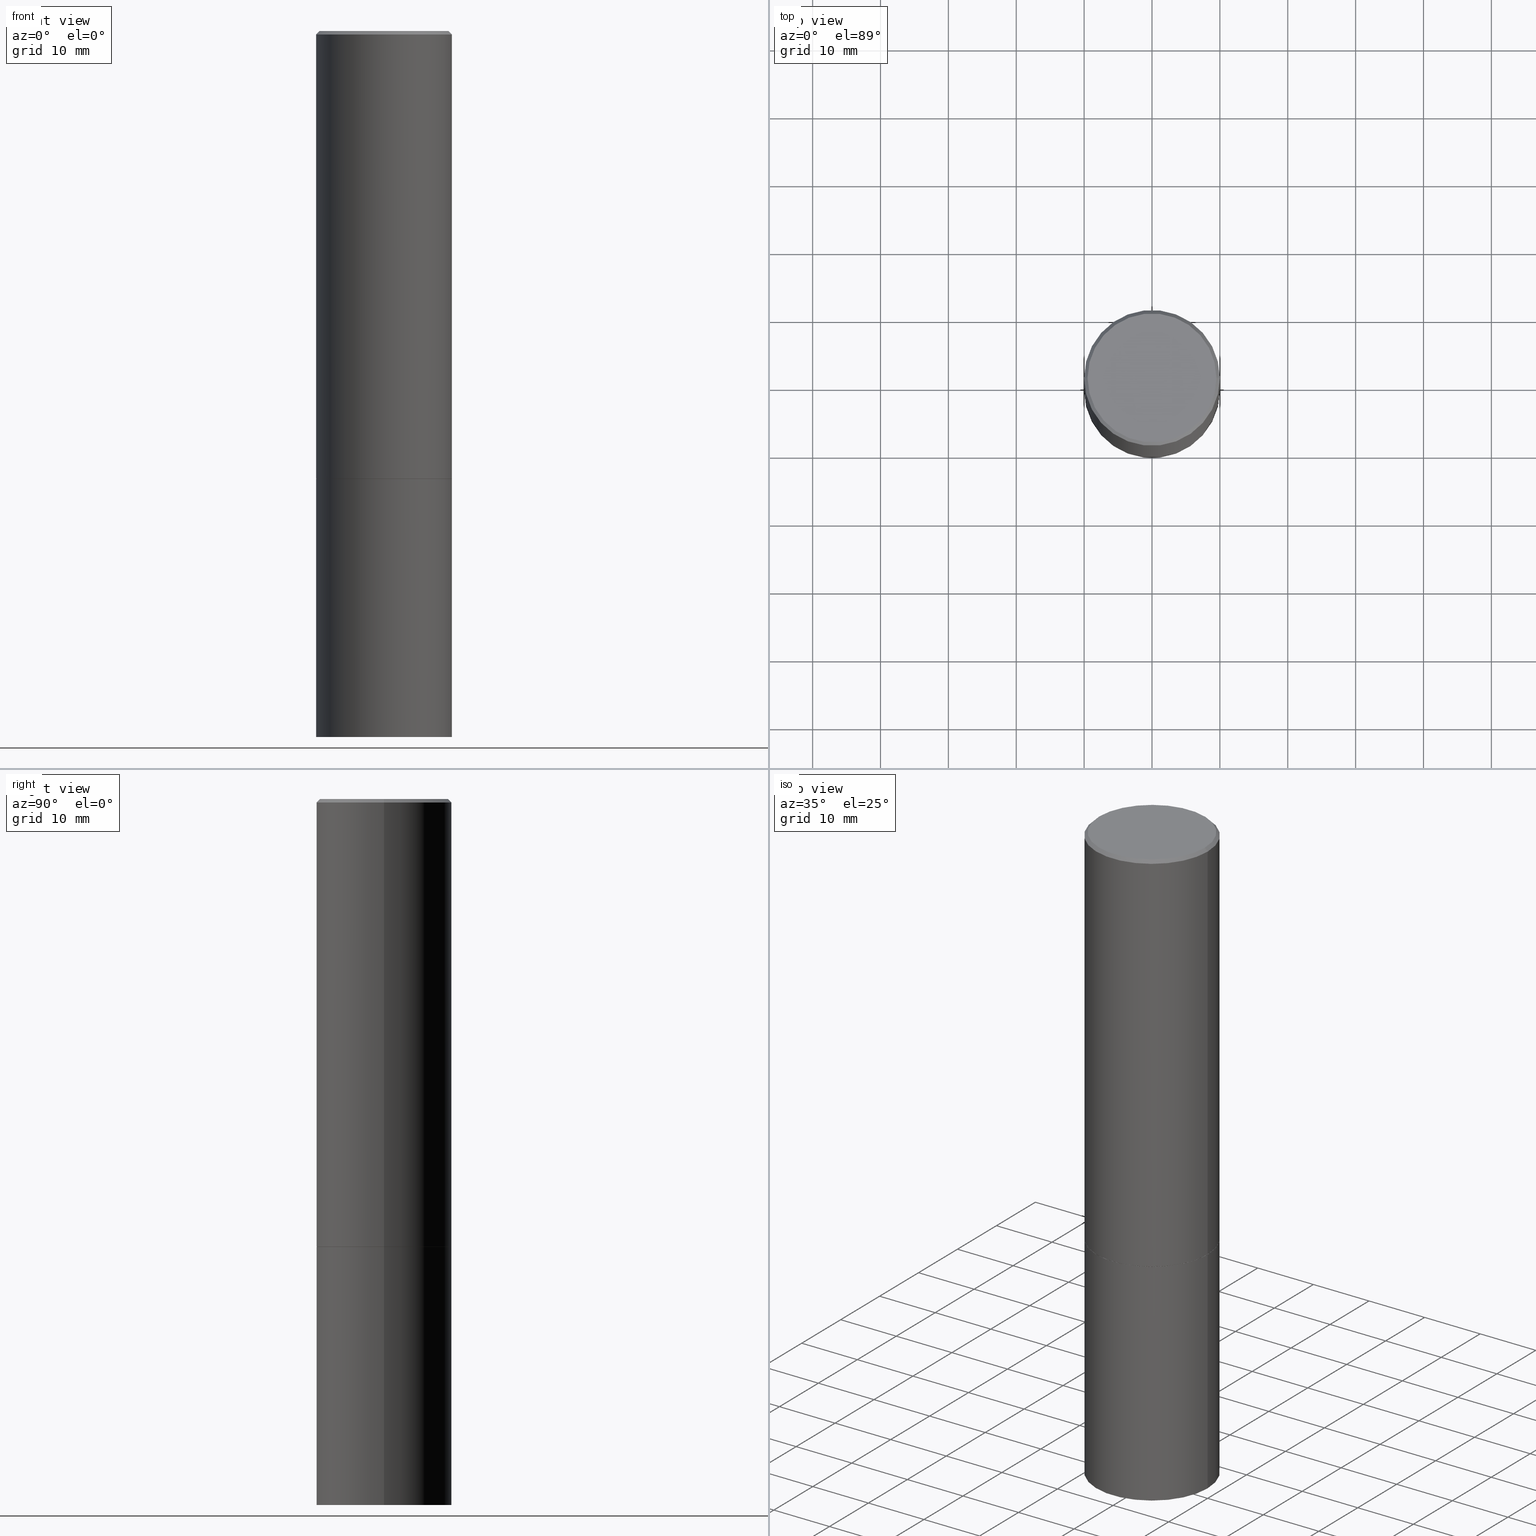
[diagram: canonical four-view strip — front | top / right | iso, engineering-drawing reading convention]
A machine part, canonical four-view strip (front | top / right | iso — engineering-drawing reading convention). The complete STEP part file that produces these views, byte-faithful:
ISO-10303-21;
HEADER;
FILE_DESCRIPTION (( 'STEP AP203' ),
    '1' );
FILE_NAME ('45105.STEP',
    '2024-02-28T09:01:40',
    ( '' ),
    ( '' ),
    'SwSTEP 2.0',
    'SolidWorks 2023',
    '' );
FILE_SCHEMA (( 'CONFIG_CONTROL_DESIGN' ));
ENDSEC;

DATA;
#1 = MECHANICAL_CONTEXT ( 'NONE', #319, 'mechanical' ) ;
#2 = APPROVAL_DATE_TIME ( #262, #215 ) ;
#3 = EDGE_LOOP ( 'NONE', ( #53, #331 ) ) ;
#4 = UNCERTAINTY_MEASURE_WITH_UNIT (LENGTH_MEASURE( 1.000000000000000082E-05 ), #365, 'distance_accuracy_value', 'NONE');
#5 = DATE_AND_TIME ( #208, #170 ) ;
#6 = ADVANCED_FACE ( 'NONE', ( #241 ), #153, .T. ) ;
#7 = AXIS2_PLACEMENT_3D ( 'NONE', #216, #193, #129 ) ;
#8 = CARTESIAN_POINT ( 'NONE',  ( 0.3937000000000000499, -2.749192406205083217E-15, 1.919750796630860172E-29 ) ) ;
#9 = CARTESIAN_POINT ( 'NONE',  ( 6.351860677185276395E-29, -9.068773629511191193E-15, -2.597400000000001263 ) ) ;
#10 = CYLINDRICAL_SURFACE ( 'NONE', #169, 0.3936999999999998279 ) ;
#11 = DIRECTION ( 'NONE',  ( -1.000000000000000000, 6.982962677686265922E-15, -4.876176775795935793E-29 ) ) ;
#12 = SECURITY_CLASSIFICATION ( '', '', #362 ) ;
#13 = EDGE_CURVE ( 'NONE', #76, #72, #348, .T. ) ;
#14 = CARTESIAN_POINT ( 'NONE',  ( -0.3937000000000000499, -8.886660975684131482E-15, -2.598400000000000265 ) ) ;
#15 = CARTESIAN_POINT ( 'NONE',  ( -2.087702828670439639E-46, 2.980686340760894400E-32, 8.537024980200822558E-18 ) ) ;
#16 = ORIENTED_EDGE ( 'NONE', *, *, #308, .F. ) ;
#17 = DIRECTION ( 'NONE',  ( -2.445468806185136597E-29, 3.491481338843145583E-15, 1.000000000000000000 ) ) ;
#18 = AXIS2_PLACEMENT_3D ( 'NONE', #15, #249, #134 ) ;
#19 = CARTESIAN_POINT ( 'NONE',  ( 4.890937612370295054E-31, -6.982962677686322424E-17, -0.02000000000000009062 ) ) ;
#20 = ORIENTED_EDGE ( 'NONE', *, *, #112, .F. ) ;
#21 = FACE_OUTER_BOUND ( 'NONE', #133, .T. ) ;
#22 = PERSON_AND_ORGANIZATION ( #295, #155 ) ;
#23 = VERTEX_POINT ( 'NONE', #270 ) ;
#24 = CIRCLE ( 'NONE', #37, 0.3937000000000000499 ) ;
#25 = AXIS2_PLACEMENT_3D ( 'NONE', #278, #301, #162 ) ;
#26 = ORIENTED_EDGE ( 'NONE', *, *, #141, .F. ) ;
#27 = APPROVAL_ROLE ( '' ) ;
#28 = CC_DESIGN_PERSON_AND_ORGANIZATION_ASSIGNMENT ( #259, #116, ( #128 ) ) ;
#29 = DATE_TIME_ROLE ( 'creation_date' ) ;
#30 = LOCAL_TIME ( 4, 1, 40.00000000000000000, #178 ) ;
#31 = PRODUCT_RELATED_PRODUCT_CATEGORY ( 'detail', '', ( #128 ) ) ;
#32 = DIRECTION ( 'NONE',  ( -2.445468806185136597E-29, 3.491481338843145583E-15, 1.000000000000000000 ) ) ;
#33 = PLANE ( 'NONE',  #82 ) ;
#34 = ADVANCED_BREP_SHAPE_REPRESENTATION ( '45105', ( #200, #327, #314 ), #366 ) ;
#35 = ADVANCED_FACE ( 'NONE', ( #264 ), #10, .T. ) ;
#36 = PLANE ( 'NONE',  #61 ) ;
#37 = AXIS2_PLACEMENT_3D ( 'NONE', #9, #318, #62 ) ;
#38 = FACE_OUTER_BOUND ( 'NONE', #194, .T. ) ;
#39 = CIRCLE ( 'NONE', #352, 0.3936999999999996613 ) ;
#40 = DIRECTION ( 'NONE',  ( 1.000000000000000000, -6.982962677686266711E-15, 4.876176775795935793E-29 ) ) ;
#41 = PLANE ( 'NONE',  #302 ) ;
#42 = EDGE_LOOP ( 'NONE', ( #311, #335, #118, #309 ) ) ;
#43 = FACE_OUTER_BOUND ( 'NONE', #3, .T. ) ;
#44 = CIRCLE ( 'NONE', #213, 0.3926999999999999935 ) ;
#45 = EDGE_LOOP ( 'NONE', ( #226, #192, #84, #198 ) ) ;
#46 = DIRECTION ( 'NONE',  ( -0.7071067811865469066, 2.468850131082249961E-15, -0.7071067811865482389 ) ) ;
#47 = ORIENTED_EDGE ( 'NONE', *, *, #96, .F. ) ;
#48 = EDGE_CURVE ( 'NONE', #87, #164, #44, .T. ) ;
#49 = LINE ( 'NONE', #165, #260 ) ;
#50 = ORIENTED_EDGE ( 'NONE', *, *, #257, .T. ) ;
#51 =( LENGTH_UNIT ( ) NAMED_UNIT ( * ) SI_UNIT ( $, .METRE. ) );
#52 = CC_DESIGN_PERSON_AND_ORGANIZATION_ASSIGNMENT ( #22, #138, ( #68 ) ) ;
#53 = ORIENTED_EDGE ( 'NONE', *, *, #229, .T. ) ;
#54 = AXIS2_PLACEMENT_3D ( 'NONE', #154, #125, #321 ) ;
#55 = EDGE_CURVE ( 'NONE', #164, #87, #284, .T. ) ;
#56 = APPLICATION_PROTOCOL_DEFINITION ( 'international standard', 'config_control_design', 1994, #319 ) ;
#57 = ORIENTED_EDGE ( 'NONE', *, *, #308, .T. ) ;
#58 = EDGE_CURVE ( 'NONE', #164, #328, #342, .T. ) ;
#59 = CARTESIAN_POINT ( 'NONE',  ( -0.3926999999999999935, -6.281963787520115688E-15, -2.598399999999999821 ) ) ;
#60 = CARTESIAN_POINT ( 'NONE',  ( 0.000000000000000000, 0.000000000000000000, 0.000000000000000000 ) ) ;
#61 = AXIS2_PLACEMENT_3D ( 'NONE', #100, #291, #11 ) ;
#62 = DIRECTION ( 'NONE',  ( 1.000000000000000000, -6.982962677686267499E-15, 0.000000000000000000 ) ) ;
#63 = APPROVAL_DATE_TIME ( #5, #292 ) ;
#64 = DIRECTION ( 'NONE',  ( 1.000000000000000000, -6.982962677686265922E-15, 4.876176775795935793E-29 ) ) ;
#65 = DIRECTION ( 'NONE',  ( -2.438088387897960049E-29, 3.491481338843145188E-15, 1.000000000000000000 ) ) ;
#66 = ADVANCED_FACE ( 'NONE', ( #237 ), #36, .T. ) ;
#67 = DIRECTION ( 'NONE',  ( 2.445468806185136597E-29, -3.491481338843145583E-15, -1.000000000000000000 ) ) ;
#68 = PRODUCT_DEFINITION_FORMATION_WITH_SPECIFIED_SOURCE ( 'ANY', '', #128, .NOT_KNOWN. ) ;
#69 = PLANE ( 'NONE',  #102 ) ;
#70 = ORIENTED_EDGE ( 'NONE', *, *, #339, .T. ) ;
#71 = CARTESIAN_POINT ( 'NONE',  ( 0.3936999999999996613, -2.770807688499512973E-15, -0.02000000000000009062 ) ) ;
#72 = VERTEX_POINT ( 'NONE', #14 ) ;
#73 = CARTESIAN_POINT ( 'NONE',  ( 4.890937612370295054E-31, -6.982962677686322424E-17, -0.02000000000000009062 ) ) ;
#74 = AXIS2_PLACEMENT_3D ( 'NONE', #345, #179, #235 ) ;
#75 = LOCAL_TIME ( 4, 1, 40.00000000000000000, #79 ) ;
#76 = VERTEX_POINT ( 'NONE', #347 ) ;
#77 = DIRECTION ( 'NONE',  ( 2.445468806185136597E-29, -3.491481338843145583E-15, -1.000000000000000000 ) ) ;
#78 = VERTEX_POINT ( 'NONE', #124 ) ;
#79 = COORDINATED_UNIVERSAL_TIME_OFFSET ( 5, 0, .BEHIND. ) ;
#80 = VERTEX_POINT ( 'NONE', #182 ) ;
#81 = APPROVAL ( #142, 'UNSPECIFIED' ) ;
#82 = AXIS2_PLACEMENT_3D ( 'NONE', #206, #65, #236 ) ;
#83 =( NAMED_UNIT ( * ) SI_UNIT ( $, .STERADIAN. ) SOLID_ANGLE_UNIT ( ) );
#84 = ORIENTED_EDGE ( 'NONE', *, *, #174, .F. ) ;
#85 = APPROVAL_ROLE ( '' ) ;
#86 = APPROVAL_STATUS ( 'not_yet_approved' ) ;
#87 = VERTEX_POINT ( 'NONE', #150 ) ;
#88 = CIRCLE ( 'NONE', #239, 0.3937000000000000499 ) ;
#89 = CONICAL_SURFACE ( 'NONE', #147, 0.3926999999999999935, 0.7853981633980972044 ) ;
#90 = LINE ( 'NONE', #8, #110 ) ;
#91 = ORIENTED_EDGE ( 'NONE', *, *, #189, .F. ) ;
#92 = DATE_TIME_ROLE ( 'classification_date' ) ;
#93 = CARTESIAN_POINT ( 'NONE',  ( 0.000000000000000000, 0.000000000000000000, 0.000000000000000000 ) ) ;
#94 = PRODUCT_DEFINITION_SHAPE ( 'NONE', 'NONE',  #231 ) ;
#95 = CARTESIAN_POINT ( 'NONE',  ( 0.3926999999999999935, -1.181447455437742667E-14, -2.598399999999999821 ) ) ;
#96 = EDGE_CURVE ( 'NONE', #72, #80, #317, .T. ) ;
#97 = VECTOR ( 'NONE', #288, 39.37007874015748143 ) ;
#98 = APPROVAL_ROLE ( '' ) ;
#99 = DIRECTION ( 'NONE',  ( 1.000000000000000000, -6.982962677686266711E-15, 4.876176775795935793E-29 ) ) ;
#100 = CARTESIAN_POINT ( 'NONE',  ( 2.749192406205183007E-15, 0.3936999999999857280, -4.094500000000001805 ) ) ;
#101 = CARTESIAN_POINT ( 'NONE',  ( 6.354306145991457514E-29, -9.072265110850029467E-15, -2.598399999999999821 ) ) ;
#102 = AXIS2_PLACEMENT_3D ( 'NONE', #163, #275, #220 ) ;
#103 = DIRECTION ( 'NONE',  ( -1.000000000000000000, 6.982962677686266711E-15, 0.000000000000000000 ) ) ;
#104 = AXIS2_PLACEMENT_3D ( 'NONE', #19, #77, #130 ) ;
#105 = ORIENTED_EDGE ( 'NONE', *, *, #296, .T. ) ;
#106 = CARTESIAN_POINT ( 'NONE',  ( 0.000000000000000000, 0.000000000000000000, 0.000000000000000000 ) ) ;
#107 = LINE ( 'NONE', #326, #265 ) ;
#108 = ORIENTED_EDGE ( 'NONE', *, *, #141, .T. ) ;
#109 = DIRECTION ( 'NONE',  ( 0.7071067811865469066, -7.319954787623254468E-15, -0.7071067811865482389 ) ) ;
#110 = VECTOR ( 'NONE', #344, 39.37007874015748143 ) ;
#111 = PERSON_AND_ORGANIZATION ( #295, #155 ) ;
#112 = EDGE_CURVE ( 'NONE', #353, #328, #88, .T. ) ;
#113 = DATE_AND_TIME ( #117, #139 ) ;
#114 = CC_DESIGN_APPROVAL ( #292, ( #12 ) ) ;
#115 = CC_DESIGN_APPROVAL ( #215, ( #68 ) ) ;
#116 = PERSON_AND_ORGANIZATION_ROLE ( 'design_owner' ) ;
#117 = CALENDAR_DATE ( 2024, 28, 2 ) ;
#118 = ORIENTED_EDGE ( 'NONE', *, *, #229, .F. ) ;
#119 = AXIS2_PLACEMENT_3D ( 'NONE', #271, #276, #40 ) ;
#120 = APPROVAL_PERSON_ORGANIZATION ( #338, #215, #85 ) ;
#121 = CARTESIAN_POINT ( 'NONE',  ( 1.001297202692504215E-28, -1.429587034189326149E-14, -4.094500000000000028 ) ) ;
#122 = PERSON_AND_ORGANIZATION ( #295, #155 ) ;
#123 = ADVANCED_FACE ( 'NONE', ( #38 ), #33, .F. ) ;
#124 = CARTESIAN_POINT ( 'NONE',  ( -0.3736999999999996436, 2.644447966039786297E-15, 8.537024980182450727E-18 ) ) ;
#125 = DIRECTION ( 'NONE',  ( -2.445468806185136597E-29, 3.491481338843145583E-15, 1.000000000000000000 ) ) ;
#126 = CONICAL_SURFACE ( 'NONE', #281, 0.3926999999999999935, 0.7853981633980972044 ) ;
#127 = CARTESIAN_POINT ( 'NONE',  ( 6.351860677185276395E-29, -9.068773629511191193E-15, -2.597400000000001263 ) ) ;
#128 = PRODUCT ( '45105', '45105', '', ( #1 ) ) ;
#129 = DIRECTION ( 'NONE',  ( 1.000000000000000000, -6.982962677686267499E-15, 0.000000000000000000 ) ) ;
#130 = DIRECTION ( 'NONE',  ( -1.000000000000000000, 6.982962677686266711E-15, 0.000000000000000000 ) ) ;
#131 = ORIENTED_EDGE ( 'NONE', *, *, #48, .T. ) ;
#132 = CARTESIAN_POINT ( 'NONE',  ( -0.3936999999999996613, 2.679362779428217552E-15, -0.02000000000000009062 ) ) ;
#133 = EDGE_LOOP ( 'NONE', ( #217, #171, #363, #105 ) ) ;
#134 = DIRECTION ( 'NONE',  ( 1.000000000000000000, -6.982962677686266711E-15, 4.876212485538980163E-29 ) ) ;
#135 = ORIENTED_EDGE ( 'NONE', *, *, #339, .F. ) ;
#136 = LINE ( 'NONE', #71, #228 ) ;
#137 = EDGE_LOOP ( 'NONE', ( #26, #50, #57, #91 ) ) ;
#138 = PERSON_AND_ORGANIZATION_ROLE ( 'design_supplier' ) ;
#139 = LOCAL_TIME ( 4, 1, 40.00000000000000000, #256 ) ;
#140 = ORIENTED_EDGE ( 'NONE', *, *, #48, .F. ) ;
#141 = EDGE_CURVE ( 'NONE', #23, #78, #233, .T. ) ;
#142 = APPROVAL_STATUS ( 'not_yet_approved' ) ;
#143 = VERTEX_POINT ( 'NONE', #185 ) ;
#144 = CALENDAR_DATE ( 2024, 28, 2 ) ;
#145 = DIRECTION ( 'NONE',  ( 1.000000000000000000, 0.000000000000000000, 0.000000000000000000 ) ) ;
#146 = ORIENTED_EDGE ( 'NONE', *, *, #55, .F. ) ;
#147 = AXIS2_PLACEMENT_3D ( 'NONE', #101, #17, #195 ) ;
#148 = EDGE_CURVE ( 'NONE', #143, #80, #90, .T. ) ;
#149 = APPROVAL_STATUS ( 'not_yet_approved' ) ;
#150 = CARTESIAN_POINT ( 'NONE',  ( -0.3926999999999999935, -6.276665333171897231E-15, -2.598399999999999821 ) ) ;
#151 = EDGE_CURVE ( 'NONE', #87, #353, #316, .T. ) ;
#152 = DIRECTION ( 'NONE',  ( -2.445468806185136597E-29, 3.491481338843145583E-15, 1.000000000000000000 ) ) ;
#153 = CYLINDRICAL_SURFACE ( 'NONE', #346, 0.3937000000000000499 ) ;
#154 = CARTESIAN_POINT ( 'NONE',  ( 6.354306145991457514E-29, -9.072265110850029467E-15, -2.598399999999999821 ) ) ;
#155 = ORGANIZATION ( 'UNSPECIFIED', 'UNSPECIFIED', '' ) ;
#156 = CARTESIAN_POINT ( 'NONE',  ( 0.3926999999999999935, -1.181447455437742667E-14, -2.598399999999999821 ) ) ;
#157 = CARTESIAN_POINT ( 'NONE',  ( 6.354306145991459756E-29, -9.072265110850031044E-15, -2.598400000000000265 ) ) ;
#158 = DIRECTION ( 'NONE',  ( 1.000000000000000000, -6.982962677686265133E-15, 0.000000000000000000 ) ) ;
#159 = ORIENTED_EDGE ( 'NONE', *, *, #13, .F. ) ;
#160 = EDGE_CURVE ( 'NONE', #143, #76, #313, .T. ) ;
#161 = CONICAL_SURFACE ( 'NONE', #104, 0.3936999999999996613, 0.7853981633974473908 ) ;
#162 = DIRECTION ( 'NONE',  ( 1.000000000000000000, -6.982962677686266711E-15, 0.000000000000000000 ) ) ;
#163 = CARTESIAN_POINT ( 'NONE',  ( 2.609533152651354648E-15, 0.3736999999999996436, -1.300498063835581828E-15 ) ) ;
#164 = VERTEX_POINT ( 'NONE', #95 ) ;
#165 = CARTESIAN_POINT ( 'NONE',  ( -0.3936999999999998279, 2.797406750687513209E-15, -1.936584745033355614E-29 ) ) ;
#166 = CC_DESIGN_PERSON_AND_ORGANIZATION_ASSIGNMENT ( #230, #173, ( #231 ) ) ;
#167 = ORIENTED_EDGE ( 'NONE', *, *, #160, .F. ) ;
#168 = CARTESIAN_POINT ( 'NONE',  ( 0.3936999999999998279, -2.749192406205082033E-15, 1.919750796630859051E-29 ) ) ;
#169 = AXIS2_PLACEMENT_3D ( 'NONE', #60, #184, #99 ) ;
#170 = LOCAL_TIME ( 4, 1, 40.00000000000000000, #268 ) ;
#171 = ORIENTED_EDGE ( 'NONE', *, *, #238, .F. ) ;
#172 = CARTESIAN_POINT ( 'NONE',  ( 0.000000000000000000, 0.000000000000000000, 0.000000000000000000 ) ) ;
#173 = PERSON_AND_ORGANIZATION_ROLE ( 'creator' ) ;
#174 = EDGE_CURVE ( 'NONE', #328, #353, #24, .T. ) ;
#175 = APPLICATION_PROTOCOL_DEFINITION ( 'international standard', 'config_control_design', 1994, #294 ) ;
#176 = AXIS2_PLACEMENT_3D ( 'NONE', #210, #207, #183 ) ;
#177 = CIRCLE ( 'NONE', #7, 0.3937000000000000499 ) ;
#178 = COORDINATED_UNIVERSAL_TIME_OFFSET ( 5, 0, .BEHIND. ) ;
#179 = DIRECTION ( 'NONE',  ( -2.445468806185136597E-29, 3.491481338843145583E-15, 1.000000000000000000 ) ) ;
#180 = ADVANCED_FACE ( 'NONE', ( #299 ), #272, .T. ) ;
#181 = DATE_AND_TIME ( #334, #75 ) ;
#182 = CARTESIAN_POINT ( 'NONE',  ( 0.3937000000000000499, -1.182145751705511584E-14, -2.598400000000000265 ) ) ;
#183 = DIRECTION ( 'NONE',  ( 1.000000000000000000, -6.982962677686267499E-15, 0.000000000000000000 ) ) ;
#184 = DIRECTION ( 'NONE',  ( -2.445468806185136597E-29, 3.491481338843145583E-15, 1.000000000000000000 ) ) ;
#185 = CARTESIAN_POINT ( 'NONE',  ( 0.3937000000000000499, -1.704506274809834471E-14, -4.094500000000000028 ) ) ;
#186 = CLOSED_SHELL ( 'NONE', ( #224, #66, #263, #6 ) ) ;
#187 = FACE_OUTER_BOUND ( 'NONE', #137, .T. ) ;
#188 = CARTESIAN_POINT ( 'NONE',  ( 2.749192406205146325E-15, 0.3936999999999909461, -2.598400000000002041 ) ) ;
#189 = EDGE_CURVE ( 'NONE', #78, #300, #107, .T. ) ;
#190 = EDGE_LOOP ( 'NONE', ( #167, #135 ) ) ;
#191 = DIRECTION ( 'NONE',  ( -2.445468806185136597E-29, 3.491481338843145583E-15, 1.000000000000000000 ) ) ;
#192 = ORIENTED_EDGE ( 'NONE', *, *, #151, .T. ) ;
#193 = DIRECTION ( 'NONE',  ( -2.445468806185136597E-29, 3.491481338843145583E-15, 1.000000000000000000 ) ) ;
#194 = EDGE_LOOP ( 'NONE', ( #146, #140 ) ) ;
#195 = DIRECTION ( 'NONE',  ( 1.000000000000000000, -6.982962677686265133E-15, 0.000000000000000000 ) ) ;
#196 = EDGE_LOOP ( 'NONE', ( #273, #108 ) ) ;
#197 = LINE ( 'NONE', #168, #199 ) ;
#198 = ORIENTED_EDGE ( 'NONE', *, *, #58, .F. ) ;
#199 = VECTOR ( 'NONE', #337, 39.37007874015748143 ) ;
#200 = MANIFOLD_SOLID_BREP ( 'Body-Move/Copy2[1]', #186 ) ;
#201 = DIRECTION ( 'NONE',  ( 0.000000000000000000, 0.000000000000000000, 1.000000000000000000 ) ) ;
#202 = ADVANCED_FACE ( 'NONE', ( #325 ), #69, .F. ) ;
#203 = COORDINATED_UNIVERSAL_TIME_OFFSET ( 5, 0, .BEHIND. ) ;
#204 = PERSON_AND_ORGANIZATION ( #295, #155 ) ;
#205 = AXIS2_PLACEMENT_3D ( 'NONE', #350, #67, #103 ) ;
#206 = CARTESIAN_POINT ( 'NONE',  ( 6.354306145991459756E-29, -9.072265110850031044E-15, -2.598400000000000265 ) ) ;
#207 = DIRECTION ( 'NONE',  ( -2.445468806185136597E-29, 3.491481338843145583E-15, 1.000000000000000000 ) ) ;
#208 = CALENDAR_DATE ( 2024, 28, 2 ) ;
#209 = CARTESIAN_POINT ( 'NONE',  ( -0.3937000000000000499, 2.797406750687514786E-15, -1.936584745033356735E-29 ) ) ;
#210 = CARTESIAN_POINT ( 'NONE',  ( 6.354306145991459756E-29, -9.072265110850031044E-15, -2.598400000000000265 ) ) ;
#211 = DIRECTION ( 'NONE',  ( -2.445468806185136597E-29, 3.491481338843145583E-15, 1.000000000000000000 ) ) ;
#212 = DIRECTION ( 'NONE',  ( -2.445468806185136597E-29, 3.491481338843145583E-15, 1.000000000000000000 ) ) ;
#213 = AXIS2_PLACEMENT_3D ( 'NONE', #267, #152, #293 ) ;
#214 = CONICAL_SURFACE ( 'NONE', #205, 0.3936999999999996613, 0.7853981633974473908 ) ;
#215 = APPROVAL ( #86, 'UNSPECIFIED' ) ;
#216 = CARTESIAN_POINT ( 'NONE',  ( 1.001297202692504215E-28, -1.429587034189326149E-14, -4.094500000000000028 ) ) ;
#217 = ORIENTED_EDGE ( 'NONE', *, *, #257, .F. ) ;
#218 = FACE_OUTER_BOUND ( 'NONE', #219, .T. ) ;
#219 = EDGE_LOOP ( 'NONE', ( #252, #131, #355, #20 ) ) ;
#220 = DIRECTION ( 'NONE',  ( -1.000000000000000000, 6.982962677686265922E-15, -4.876176775795935793E-29 ) ) ;
#221 = VECTOR ( 'NONE', #287, 39.37007874015748143 ) ;
#222 = DIRECTION ( 'NONE',  ( 2.438088387897960049E-29, -3.491481338843145188E-15, -1.000000000000000000 ) ) ;
#223 = ORIENTED_EDGE ( 'NONE', *, *, #174, .T. ) ;
#224 = ADVANCED_FACE ( 'NONE', ( #330 ), #298, .T. ) ;
#225 = PERSON_AND_ORGANIZATION_ROLE ( 'classification_officer' ) ;
#226 = ORIENTED_EDGE ( 'NONE', *, *, #55, .T. ) ;
#227 = LENGTH_MEASURE_WITH_UNIT ( LENGTH_MEASURE( 0.02539999999999999897 ), #51 );
#228 = VECTOR ( 'NONE', #109, 39.37007874015748143 ) ;
#229 = EDGE_CURVE ( 'NONE', #80, #72, #289, .T. ) ;
#230 = PERSON_AND_ORGANIZATION ( #295, #155 ) ;
#231 = PRODUCT_DEFINITION ( 'UNKNOWN', '', #68, #280 ) ;
#232 = DIRECTION ( 'NONE',  ( -2.445468806185136597E-29, 3.491481338843145583E-15, 1.000000000000000000 ) ) ;
#233 = CIRCLE ( 'NONE', #74, 0.3736999999999996436 ) ;
#234 = CC_DESIGN_APPROVAL ( #81, ( #231 ) ) ;
#235 = DIRECTION ( 'NONE',  ( 1.000000000000000000, -6.982962677686266711E-15, 4.876212485538980163E-29 ) ) ;
#236 = DIRECTION ( 'NONE',  ( 1.000000000000000000, -6.982962677686265922E-15, 4.876176775795935793E-29 ) ) ;
#237 = FACE_OUTER_BOUND ( 'NONE', #190, .T. ) ;
#238 = EDGE_CURVE ( 'NONE', #78, #23, #336, .T. ) ;
#239 = AXIS2_PLACEMENT_3D ( 'NONE', #127, #211, #324 ) ;
#240 = LOCAL_TIME ( 4, 1, 40.00000000000000000, #203 ) ;
#241 = FACE_OUTER_BOUND ( 'NONE', #245, .T. ) ;
#242 = CARTESIAN_POINT ( 'NONE',  ( -0.3937000000000000499, -1.771894877456511079E-15, -2.597400000000001263 ) ) ;
#243 = CC_DESIGN_DATE_AND_TIME_ASSIGNMENT ( #258, #29, ( #231 ) ) ;
#244 = DIRECTION ( 'NONE',  ( -2.445468806185136877E-29, 3.491481338843145188E-15, 1.000000000000000000 ) ) ;
#245 = EDGE_LOOP ( 'NONE', ( #159, #70, #277, #47 ) ) ;
#246 = VECTOR ( 'NONE', #269, 39.37007874015748143 ) ;
#247 = DIRECTION ( 'NONE',  ( 1.000000000000000000, -6.982962677686266711E-15, 0.000000000000000000 ) ) ;
#248 = ORIENTED_EDGE ( 'NONE', *, *, #360, .T. ) ;
#249 = DIRECTION ( 'NONE',  ( -2.445468806185136597E-29, 3.491481338843145583E-15, 1.000000000000000000 ) ) ;
#250 = EDGE_LOOP ( 'NONE', ( #223, #255, #16, #333 ) ) ;
#251 = ADVANCED_FACE ( 'NONE', ( #21 ), #161, .T. ) ;
#252 = ORIENTED_EDGE ( 'NONE', *, *, #151, .F. ) ;
#253 = AXIS2_PLACEMENT_3D ( 'NONE', #157, #303, #358 ) ;
#254 =( NAMED_UNIT ( * ) PLANE_ANGLE_UNIT ( ) SI_UNIT ( $, .RADIAN. ) );
#255 = ORIENTED_EDGE ( 'NONE', *, *, #290, .T. ) ;
#256 = COORDINATED_UNIVERSAL_TIME_OFFSET ( 5, 0, .BEHIND. ) ;
#257 = EDGE_CURVE ( 'NONE', #23, #357, #136, .T. ) ;
#258 = DATE_AND_TIME ( #144, #30 ) ;
#259 = PERSON_AND_ORGANIZATION ( #295, #155 ) ;
#260 = VECTOR ( 'NONE', #244, 39.37007874015748143 ) ;
#261 = ORIENTED_EDGE ( 'NONE', *, *, #296, .F. ) ;
#262 = DATE_AND_TIME ( #310, #240 ) ;
#263 = ADVANCED_FACE ( 'NONE', ( #43 ), #41, .F. ) ;
#264 = FACE_OUTER_BOUND ( 'NONE', #306, .T. ) ;
#265 = VECTOR ( 'NONE', #46, 39.37007874015748143 ) ;
#266 = DIRECTION ( 'NONE',  ( 1.000000000000000000, -6.982962677686267499E-15, 0.000000000000000000 ) ) ;
#267 = CARTESIAN_POINT ( 'NONE',  ( 6.354306145991457514E-29, -9.072265110850029467E-15, -2.598399999999999821 ) ) ;
#268 = COORDINATED_UNIVERSAL_TIME_OFFSET ( 5, 0, .BEHIND. ) ;
#269 = DIRECTION ( 'NONE',  ( -2.445468806185136877E-29, 3.491481338843145188E-15, 1.000000000000000000 ) ) ;
#270 = CARTESIAN_POINT ( 'NONE',  ( 0.3736999999999996436, -2.667287895133365992E-15, 8.537024980219274507E-18 ) ) ;
#271 = CARTESIAN_POINT ( 'NONE',  ( 0.000000000000000000, 0.000000000000000000, 0.000000000000000000 ) ) ;
#272 = CYLINDRICAL_SURFACE ( 'NONE', #119, 0.3936999999999998279 ) ;
#273 = ORIENTED_EDGE ( 'NONE', *, *, #238, .T. ) ;
#274 = APPROVAL_PERSON_ORGANIZATION ( #122, #292, #98 ) ;
#275 = DIRECTION ( 'NONE',  ( 2.438088387897960049E-29, -3.491481338843145188E-15, -1.000000000000000000 ) ) ;
#276 = DIRECTION ( 'NONE',  ( -2.445468806185136597E-29, 3.491481338843145583E-15, 1.000000000000000000 ) ) ;
#277 = ORIENTED_EDGE ( 'NONE', *, *, #148, .T. ) ;
#278 = CARTESIAN_POINT ( 'NONE',  ( 4.890937612370295054E-31, -6.982962677686322424E-17, -0.02000000000000009062 ) ) ;
#279 = ORIENTED_EDGE ( 'NONE', *, *, #112, .T. ) ;
#280 = DESIGN_CONTEXT ( 'detailed design', #294, 'design' ) ;
#281 = AXIS2_PLACEMENT_3D ( 'NONE', #305, #191, #158 ) ;
#282 = ADVANCED_FACE ( 'NONE', ( #332 ), #89, .T. ) ;
#283 = CARTESIAN_POINT ( 'NONE',  ( 0.3936999999999996613, -2.770807688499512973E-15, -0.02000000000000009062 ) ) ;
#284 = CIRCLE ( 'NONE', #54, 0.3926999999999999935 ) ;
#285 = CC_DESIGN_SECURITY_CLASSIFICATION ( #12, ( #68 ) ) ;
#286 = ADVANCED_FACE ( 'NONE', ( #218 ), #126, .T. ) ;
#287 = DIRECTION ( 'NONE',  ( -0.7071067811870063169, 7.493145998872012346E-15, 0.7071067811860887176 ) ) ;
#288 = DIRECTION ( 'NONE',  ( 0.7071067811870063169, -2.468850131087062801E-15, 0.7071067811860887176 ) ) ;
#289 = CIRCLE ( 'NONE', #253, 0.3937000000000000499 ) ;
#290 = EDGE_CURVE ( 'NONE', #353, #300, #49, .T. ) ;
#291 = DIRECTION ( 'NONE',  ( 2.438088387897960049E-29, -3.491481338843145188E-15, -1.000000000000000000 ) ) ;
#292 = APPROVAL ( #149, 'UNSPECIFIED' ) ;
#293 = DIRECTION ( 'NONE',  ( 1.000000000000000000, -6.982962677686265133E-15, 0.000000000000000000 ) ) ;
#294 = APPLICATION_CONTEXT ( 'configuration controlled 3d designs of mechanical parts and assemblies' ) ;
#295 = PERSON ( 'UNSPECIFIED', 'UNSPECIFIED', 'UNSPECIFIED', ('UNSPECIFIED'), ('UNSPECIFIED'), ('UNSPECIFIED') ) ;
#296 = EDGE_CURVE ( 'NONE', #300, #357, #297, .T. ) ;
#297 = CIRCLE ( 'NONE', #25, 0.3936999999999996613 ) ;
#298 = CYLINDRICAL_SURFACE ( 'NONE', #351, 0.3937000000000000499 ) ;
#299 = FACE_OUTER_BOUND ( 'NONE', #250, .T. ) ;
#300 = VERTEX_POINT ( 'NONE', #132 ) ;
#301 = DIRECTION ( 'NONE',  ( -2.445468806185136597E-29, 3.491481338843145583E-15, 1.000000000000000000 ) ) ;
#302 = AXIS2_PLACEMENT_3D ( 'NONE', #188, #222, #356 ) ;
#303 = DIRECTION ( 'NONE',  ( -2.445468806185136597E-29, 3.491481338843145583E-15, 1.000000000000000000 ) ) ;
#304 = CC_DESIGN_PERSON_AND_ORGANIZATION_ASSIGNMENT ( #111, #225, ( #12 ) ) ;
#305 = CARTESIAN_POINT ( 'NONE',  ( 6.354306145991457514E-29, -9.072265110850029467E-15, -2.598399999999999821 ) ) ;
#306 = EDGE_LOOP ( 'NONE', ( #343, #279, #248, #261 ) ) ;
#307 = PERSON_AND_ORGANIZATION ( #295, #155 ) ;
#308 = EDGE_CURVE ( 'NONE', #357, #300, #39, .T. ) ;
#309 = ORIENTED_EDGE ( 'NONE', *, *, #148, .F. ) ;
#310 = CALENDAR_DATE ( 2024, 28, 2 ) ;
#311 = ORIENTED_EDGE ( 'NONE', *, *, #160, .T. ) ;
#312 = PERSON_AND_ORGANIZATION_ROLE ( 'creator' ) ;
#313 = CIRCLE ( 'NONE', #359, 0.3937000000000000499 ) ;
#314 = AXIS2_PLACEMENT_3D ( 'NONE', #172, #201, #145 ) ;
#315 = CC_DESIGN_PERSON_AND_ORGANIZATION_ASSIGNMENT ( #204, #312, ( #68 ) ) ;
#316 = LINE ( 'NONE', #59, #221 ) ;
#317 = CIRCLE ( 'NONE', #176, 0.3937000000000000499 ) ;
#318 = DIRECTION ( 'NONE',  ( -2.445468806185136597E-29, 3.491481338843145583E-15, 1.000000000000000000 ) ) ;
#319 = APPLICATION_CONTEXT ( 'configuration controlled 3d designs of mechanical parts and assemblies' ) ;
#320 = CC_DESIGN_DATE_AND_TIME_ASSIGNMENT ( #181, #92, ( #12 ) ) ;
#321 = DIRECTION ( 'NONE',  ( 1.000000000000000000, -6.982962677686265133E-15, 0.000000000000000000 ) ) ;
#322 = ADVANCED_FACE ( 'NONE', ( #187 ), #214, .T. ) ;
#323 = SHAPE_DEFINITION_REPRESENTATION ( #94, #34 ) ;
#324 = DIRECTION ( 'NONE',  ( 1.000000000000000000, -6.982962677686267499E-15, 0.000000000000000000 ) ) ;
#325 = FACE_OUTER_BOUND ( 'NONE', #196, .T. ) ;
#326 = CARTESIAN_POINT ( 'NONE',  ( -0.3936999999999996613, 2.679362779428217552E-15, -0.02000000000000009062 ) ) ;
#327 = MANIFOLD_SOLID_BREP ( 'Body-Move/Copy2[2]', #341 ) ;
#328 = VERTEX_POINT ( 'NONE', #354 ) ;
#329 = DIRECTION ( 'NONE',  ( -2.445468806185136597E-29, 3.491481338843145583E-15, 1.000000000000000000 ) ) ;
#330 = FACE_OUTER_BOUND ( 'NONE', #42, .T. ) ;
#331 = ORIENTED_EDGE ( 'NONE', *, *, #96, .T. ) ;
#332 = FACE_OUTER_BOUND ( 'NONE', #45, .T. ) ;
#333 = ORIENTED_EDGE ( 'NONE', *, *, #360, .F. ) ;
#334 = CALENDAR_DATE ( 2024, 28, 2 ) ;
#335 = ORIENTED_EDGE ( 'NONE', *, *, #13, .T. ) ;
#336 = CIRCLE ( 'NONE', #18, 0.3736999999999996436 ) ;
#337 = DIRECTION ( 'NONE',  ( -2.445468806185136877E-29, 3.491481338843145188E-15, 1.000000000000000000 ) ) ;
#338 = PERSON_AND_ORGANIZATION ( #295, #155 ) ;
#339 = EDGE_CURVE ( 'NONE', #76, #143, #177, .T. ) ;
#340 = DIMENSIONAL_EXPONENTS ( 1.000000000000000000, 0.000000000000000000, 0.000000000000000000, 0.000000000000000000, 0.000000000000000000, 0.000000000000000000, 0.000000000000000000 ) ;
#341 = CLOSED_SHELL ( 'NONE', ( #282, #180, #322, #251, #35, #286, #123, #202 ) ) ;
#342 = LINE ( 'NONE', #156, #97 ) ;
#343 = ORIENTED_EDGE ( 'NONE', *, *, #290, .F. ) ;
#344 = DIRECTION ( 'NONE',  ( -2.445468806185136877E-29, 3.491481338843145188E-15, 1.000000000000000000 ) ) ;
#345 = CARTESIAN_POINT ( 'NONE',  ( -2.087702828670439639E-46, 2.980686340760894400E-32, 8.537024980200822558E-18 ) ) ;
#346 = AXIS2_PLACEMENT_3D ( 'NONE', #93, #232, #64 ) ;
#347 = CARTESIAN_POINT ( 'NONE',  ( -0.3937000000000000499, -8.886660975684131482E-15, -4.094500000000000028 ) ) ;
#348 = LINE ( 'NONE', #209, #246 ) ;
#349 = DIRECTION ( 'NONE',  ( 1.000000000000000000, -6.982962677686265922E-15, 4.876176775795935793E-29 ) ) ;
#350 = CARTESIAN_POINT ( 'NONE',  ( 4.890937612370295054E-31, -6.982962677686322424E-17, -0.02000000000000009062 ) ) ;
#351 = AXIS2_PLACEMENT_3D ( 'NONE', #106, #329, #349 ) ;
#352 = AXIS2_PLACEMENT_3D ( 'NONE', #73, #212, #247 ) ;
#353 = VERTEX_POINT ( 'NONE', #242 ) ;
#354 = CARTESIAN_POINT ( 'NONE',  ( 0.3937000000000000499, -1.181796603571627441E-14, -2.597400000000001263 ) ) ;
#355 = ORIENTED_EDGE ( 'NONE', *, *, #58, .T. ) ;
#356 = DIRECTION ( 'NONE',  ( -1.000000000000000000, 6.982962677686265922E-15, -4.876176775795935793E-29 ) ) ;
#357 = VERTEX_POINT ( 'NONE', #283 ) ;
#358 = DIRECTION ( 'NONE',  ( 1.000000000000000000, -6.982962677686267499E-15, 0.000000000000000000 ) ) ;
#359 = AXIS2_PLACEMENT_3D ( 'NONE', #121, #32, #266 ) ;
#360 = EDGE_CURVE ( 'NONE', #328, #357, #197, .T. ) ;
#361 = APPROVAL_PERSON_ORGANIZATION ( #307, #81, #27 ) ;
#362 = SECURITY_CLASSIFICATION_LEVEL ( 'unclassified' ) ;
#363 = ORIENTED_EDGE ( 'NONE', *, *, #189, .T. ) ;
#364 = APPROVAL_DATE_TIME ( #113, #81 ) ;
#365 =( CONVERSION_BASED_UNIT ( 'INCH', #227 ) LENGTH_UNIT ( ) NAMED_UNIT ( #340 ) );
#366 =( GEOMETRIC_REPRESENTATION_CONTEXT ( 3 ) GLOBAL_UNCERTAINTY_ASSIGNED_CONTEXT ( ( #4 ) ) GLOBAL_UNIT_ASSIGNED_CONTEXT ( ( #365, #254, #83 ) ) REPRESENTATION_CONTEXT ( 'NONE', 'WORKASPACE' ) );
ENDSEC;
END-ISO-10303-21;
